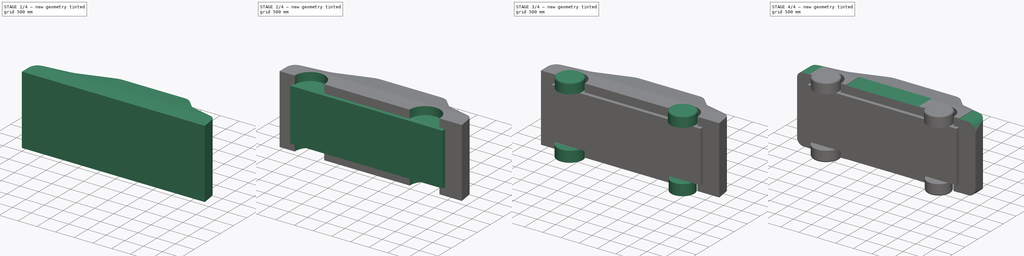
[diagram: build sequence overview — one tinted view per stage of 4, left to right]
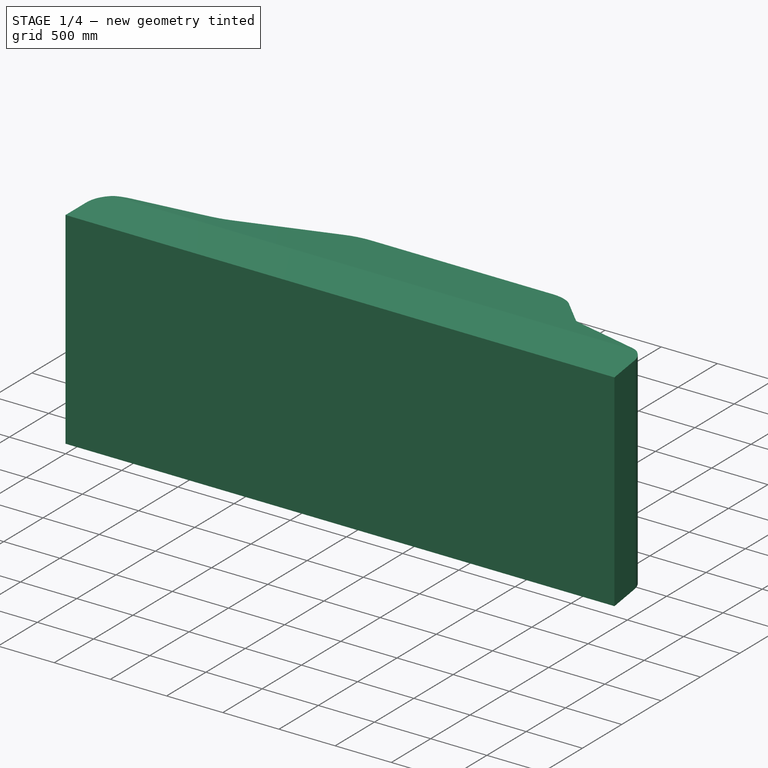
[diagram: stage 1 of 4 — iso view after this stage's code; geometry added in this stage tinted green]
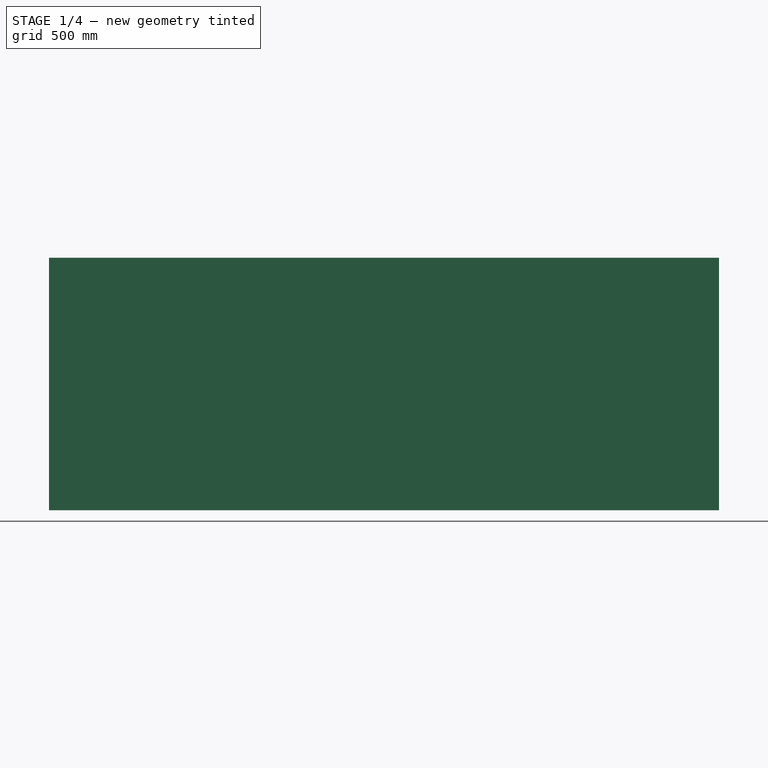
[diagram: stage 1 of 4 — front view after this stage's code; geometry added in this stage tinted green]
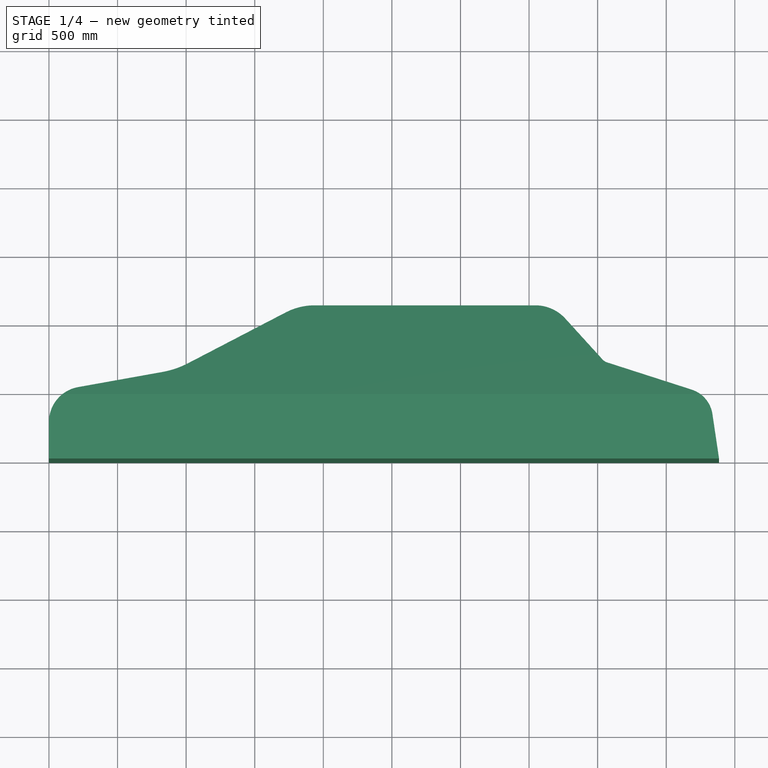
[diagram: stage 1 of 4 — top view after this stage's code; geometry added in this stage tinted green]
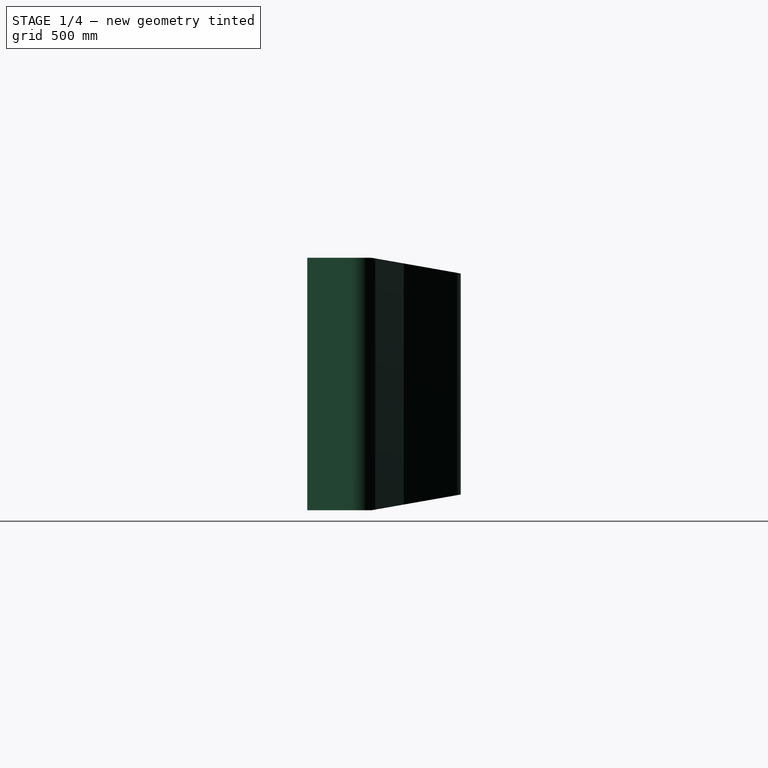
[diagram: stage 1 of 4 — right view after this stage's code; geometry added in this stage tinted green]
FCSTD DOCUMENT  (FreeCAD 1.0R39319 (Git))
Label: sedan-car
License: All rights reserved
LicenseURL: https://en.wikipedia.org/wiki/All_rights_reserved
objects: Sketcher::SketchObject×9, PartDesign::Pad×4, PartDesign::Pocket×3, PartDesign::Fillet×2, PartDesign::Body×1
note: 46 computed .brp shape members not serialized (recipe doc carries the construction recipe); baked Part::Feature solids carry a one-line shape summary decoded from their .brp

FEATURE [Sketcher::SketchObject] Sketch
  ArcFitTolerance = 1e-06
  AttachmentSupport = -> [XY_Plane]
  FullyConstrained = false
  MakeInternals = false
  MapMode = 5
  sketch-geometry (20):
    g0: LineSegment StartX=0 StartY=0 StartZ=0 EndX=4885 EndY=0 EndZ=0
    g1: LineSegment StartX=4885 StartY=0 StartZ=0 EndX=4836.85 EndY=324.008 EndZ=0
    g2: LineSegment StartX=4685.29 StartY=502.834 StartZ=0 EndX=4070.12 EndY=701.372 EndZ=0
    g3: LineSegment StartX=4034.64 StartY=724.268 StartZ=0 EndX=3763.79 EndY=1022.77 EndZ=0
    g4: LineSegment StartX=3546.4 StartY=1119.06 StartZ=0 EndX=1936.47 EndY=1119.06 EndZ=0
    g5: LineSegment StartX=1726.79 StartY=1067.63 StartZ=0 EndX=1014.79 EndY=695.958 EndZ=0
    g6: LineSegment StartX=826.713 StartY=631.63 StartZ=0 EndX=212.574 EndY=521.134 EndZ=0
    g7: LineSegment StartX=0 StartY=0 StartZ=0 EndX=0 EndY=266.901 EndZ=0
    g8: ArcOfCircle CenterX=3546.4 CenterY=825.521 CenterZ=0 NormalX=0 NormalY=0 NormalZ=1 AngleXU=0 Radius=293.541 StartAngle=0.73686 EndAngle=1.5708
    g9: GeomPoint [constr] X=3676.42 Y=1119.06 Z=0
    g10: ArcOfCircle CenterX=4617.03 CenterY=291.342 CenterZ=0 NormalX=0 NormalY=0 NormalZ=1 AngleXU=0 Radius=222.233 StartAngle=0.147524 EndAngle=1.25861
    g11: GeomPoint [constr] X=4816.57 Y=460.463 Z=0
    g12: ArcOfCircle CenterX=1936.47 CenterY=665.946 CenterZ=0 NormalX=0 NormalY=0 NormalZ=1 AngleXU=0 Radius=453.117 StartAngle=1.5708 EndAngle=2.0519
    g13: GeomPoint [constr] X=1825.32 Y=1119.06 Z=0
    g14: ArcOfCircle CenterX=710.134 CenterY=1279.58 CenterZ=0 NormalX=0 NormalY=0 NormalZ=1 AngleXU=0 Radius=658.353 StartAngle=4.8904 EndAngle=5.19349
    g15: GeomPoint [constr] X=925.663 Y=649.433 Z=0
    g16: ArcOfCircle CenterX=258.315 CenterY=266.901 CenterZ=0 NormalX=0 NormalY=0 NormalZ=1 AngleXU=0 Radius=258.315 StartAngle=1.74881 EndAngle=3.14159
    g17: GeomPoint [constr] X=0 Y=482.888 Z=0
    g18: ArcOfCircle CenterX=4095.26 CenterY=779.274 CenterZ=0 NormalX=0 NormalY=0 NormalZ=1 AngleXU=0 Radius=81.8594 StartAngle=3.87845 EndAngle=4.40021
    g19: GeomPoint [constr] X=4049.32 Y=708.084 Z=0
  constraints (31):
    c: Distance(g0) = 4885
    c: Coincident(g0,g-1)
    c: PointOnObject(g0,g-1)
    c: Coincident(g1,g0)
    c: Horizontal(g4)
    c: PointOnObject(g17,g-2)
    c: Coincident(g7,g0)
    c: PointOnObject(g9,g4)
    c: PointOnObject(g9,g3)
    c: Tangent(g4,g8) = -1.5708
    c: Tangent(g3,g8) = -1.5708
    c: PointOnObject(g11,g2)
    c: PointOnObject(g11,g1)
    c: Tangent(g2,g10) = -1.5708
    c: Tangent(g1,g10) = -1.5708
    c: PointOnObject(g13,g4)
    c: PointOnObject(g13,g5)
    c: Tangent(g4,g12) = -1.5708
    c: Tangent(g5,g12) = -1.5708
    c: PointOnObject(g15,g5)
    c: PointOnObject(g15,g6)
    c: Tangent(g5,g14) = 1.5708
    c: Tangent(g6,g14) = 1.5708
    c: PointOnObject(g17,g6)
    c: PointOnObject(g17,g7)
    c: Tangent(g6,g16) = -1.5708
    c: Tangent(g7,g16) = 1.5708
    c: PointOnObject(g19,g3)
    c: PointOnObject(g19,g2)
    c: Tangent(g3,g18) = 1.5708
    c: Tangent(g2,g18) = 1.5708
FEATURE [PartDesign::Pad] Pad
  Direction = (0,0,1)
  Length = 920
  Length2 = 920
  Profile = -> Sketch
  ReferenceAxis = -> Sketch [N_Axis]
  Refine = true
  Suppressed = false
  Type = 4
FEATURE [Sketcher::SketchObject] Sketch001
  ArcFitTolerance = 1e-06
  AttachmentSupport = -> [Pad]
  FullyConstrained = false
  MakeInternals = false
  MapMode = 5
  Placement = pos=(0,0,0) rot=(0.57735,-0.57735,-0.57735;2.0944rad)
  sketch-geometry (8):
    g0: LineSegment StartX=-300 StartY=950 StartZ=0 EndX=-1227.28 EndY=786.495 EndZ=0
    g1: LineSegment StartX=-300 StartY=-950 StartZ=0 EndX=-1227.28 EndY=-786.495 EndZ=0
    g2: LineSegment StartX=-1227.28 StartY=-786.495 StartZ=0 EndX=-1227.28 EndY=786.495 EndZ=0
    g3: LineSegment StartX=-300 StartY=950 StartZ=0 EndX=-300 EndY=1175.19 EndZ=0
    g4: LineSegment StartX=-300 StartY=1175.19 StartZ=0 EndX=-1537.58 EndY=1175.19 EndZ=0
    g5: LineSegment StartX=-1537.58 StartY=1175.19 StartZ=0 EndX=-1537.58 EndY=-1275.15 EndZ=0
    g6: LineSegment StartX=-1537.58 StartY=-1275.15 StartZ=0 EndX=-300 EndY=-1275.15 EndZ=0
    g7: LineSegment StartX=-300 StartY=-950 StartZ=0 EndX=-300 EndY=-1275.15 EndZ=0
  constraints (20):
    c: Coincident(g2,g1)
    c: Coincident(g2,g0)
    c: Vertical(g2)
    c: Coincident(g3,g0)
    c: Vertical(g3)
    c: Coincident(g4,g3)
    c: Horizontal(g4)
    c: Coincident(g5,g4)
    c: Vertical(g5)
    c: Coincident(g6,g5)
    c: Horizontal(g6)
    c: Coincident(g7,g1)
    c: Coincident(g7,g6)
    c: Vertical(g7)
    c: Angle(g4,g0) = 0.174533
    c: Angle(g1,g6) = 0.174533
    c: Distance(g-2,g3) = 300
    c: Distance(g-2,g7) = 300
    c: DistanceY(g-1,g0) = 950
    c: DistanceY(g1,g-1) = 950
FEATURE [PartDesign::Pocket] Pocket
  BaseFeature = -> Pad
  Direction = (1,0,0)
  Length = 5
  Length2 = 5
  Profile = -> Sketch001
  ReferenceAxis = -> Sketch001 [N_Axis]
  Refine = true
  Suppressed = false
  Type = 1
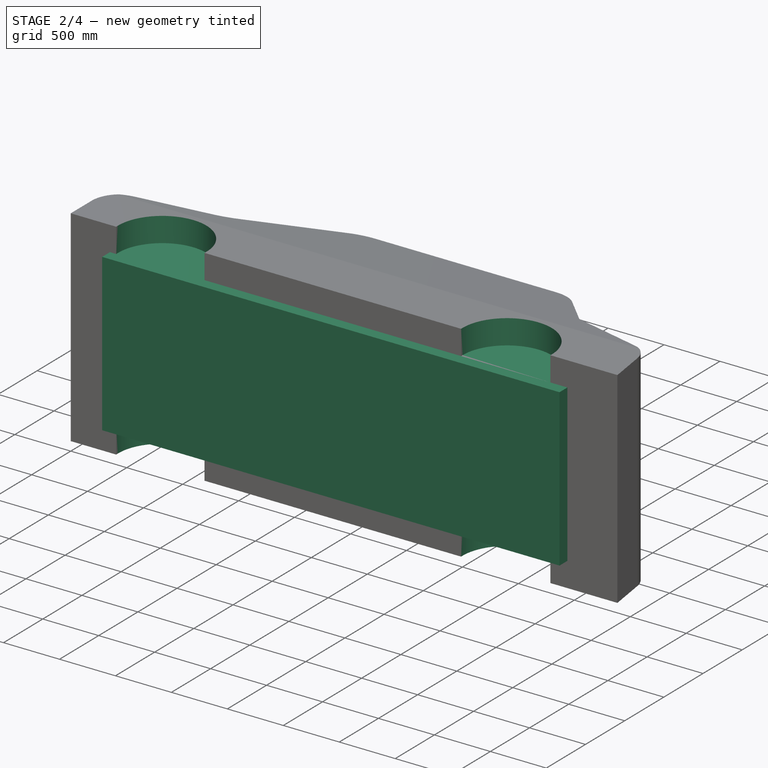
[diagram: stage 2 of 4 — iso view after this stage's code; geometry added in this stage tinted green]
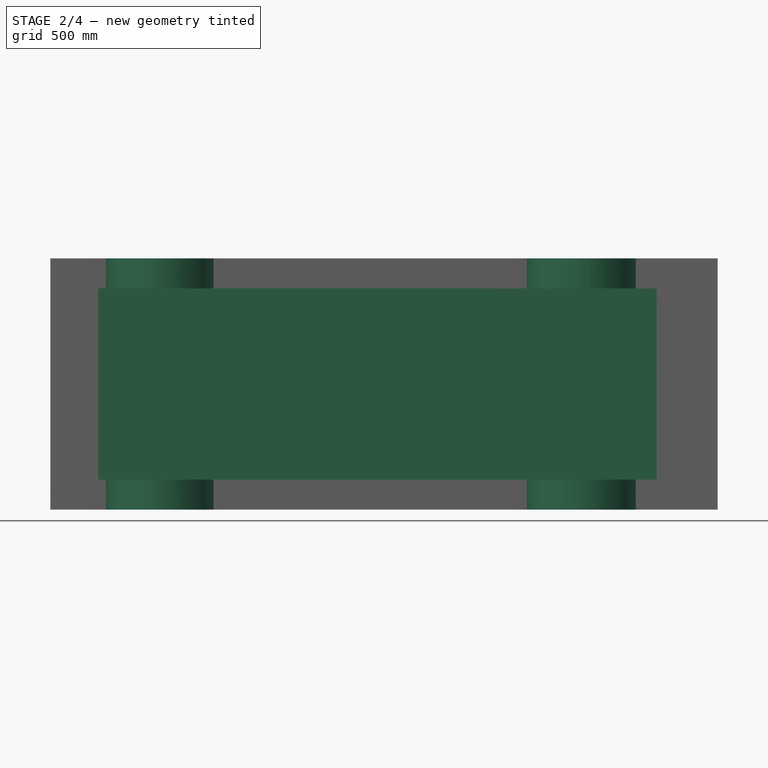
[diagram: stage 2 of 4 — front view after this stage's code; geometry added in this stage tinted green]
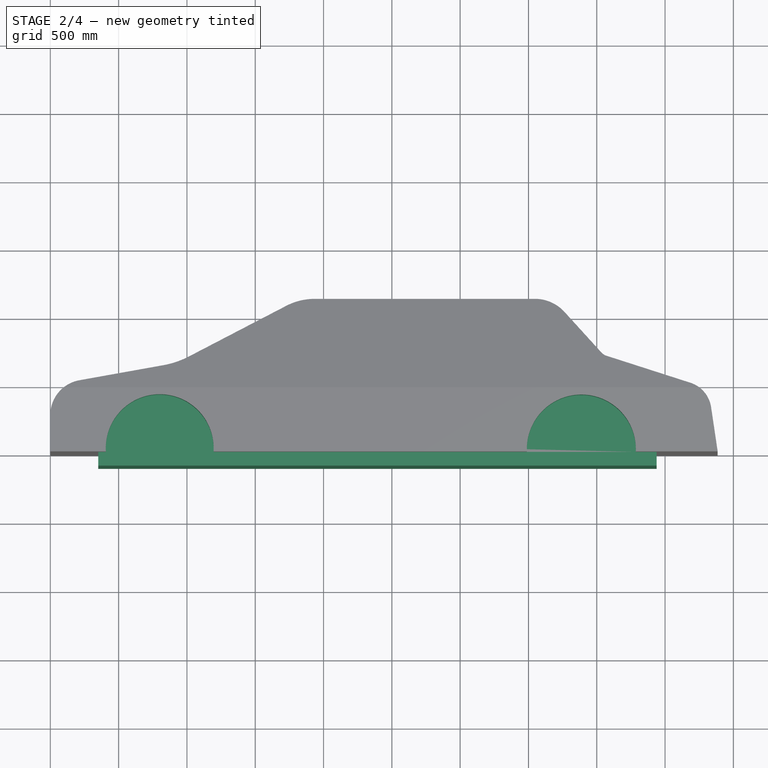
[diagram: stage 2 of 4 — top view after this stage's code; geometry added in this stage tinted green]
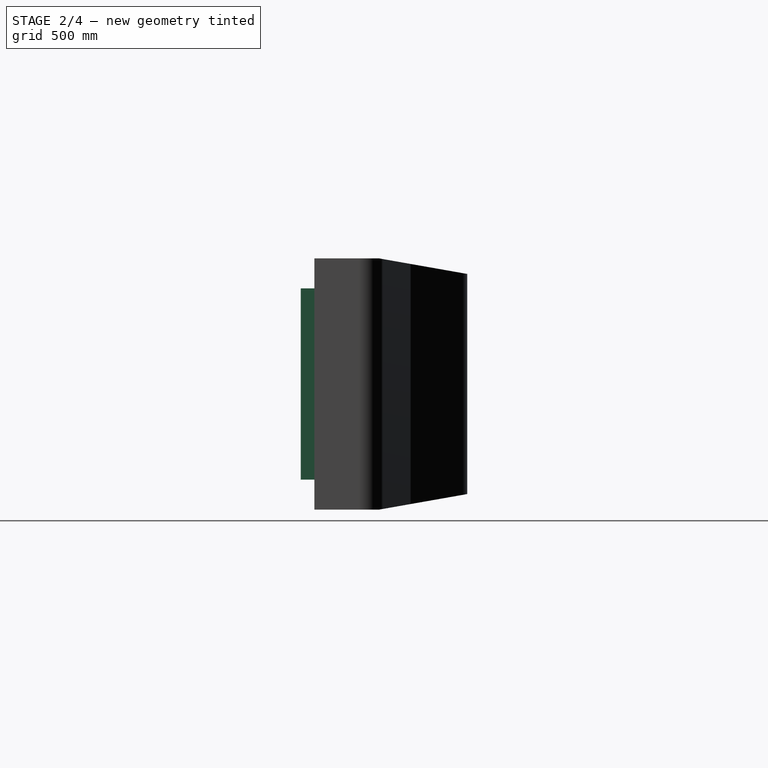
[diagram: stage 2 of 4 — right view after this stage's code; geometry added in this stage tinted green]
FEATURE [Sketcher::SketchObject] Sketch002
  ArcFitTolerance = 1e-06
  AttachmentSupport = -> [Pocket]
  FullyConstrained = false
  MakeInternals = false
  MapMode = 5
  Placement = pos=(0,0,-920) rot=(1,0,0;3.14159rad)
  sketch-geometry (2):
    g0: Circle CenterX=800.758 CenterY=-23.8619 CenterZ=0 NormalX=0 NormalY=0 NormalZ=1 AngleXU=0 Radius=394.97
    g1: Circle CenterX=3886.92 CenterY=-17.3234 CenterZ=0 NormalX=0 NormalY=0 NormalZ=1 AngleXU=0 Radius=399.062
FEATURE [PartDesign::Pocket] Pocket001
  BaseFeature = -> Pocket
  Direction = (0,0,1)
  Length = 5
  Length2 = 5
  Profile = -> Sketch002
  ReferenceAxis = -> Sketch002 [N_Axis]
  Refine = true
  Suppressed = false
  Type = 1
FEATURE [Sketcher::SketchObject] Sketch003
  ArcFitTolerance = 1e-06
  AttachmentSupport = -> [Pocket001]
  FullyConstrained = false
  MakeInternals = false
  MapMode = 5
  Placement = pos=(0,0,0) rot=(1,0,0;1.5708rad)
  sketch-geometry (4):
    g0: LineSegment StartX=350.605 StartY=700 StartZ=0 EndX=350.605 EndY=-700 EndZ=0
    g1: LineSegment StartX=350.605 StartY=-700 StartZ=0 EndX=4437.71 EndY=-700 EndZ=0
    g2: LineSegment StartX=4437.71 StartY=-700 StartZ=0 EndX=4437.71 EndY=700 EndZ=0
    g3: LineSegment StartX=4437.71 StartY=700 StartZ=0 EndX=350.605 EndY=700 EndZ=0
  constraints (10):
    c: Coincident(g0,g1)
    c: Coincident(g1,g2)
    c: Coincident(g2,g3)
    c: Coincident(g3,g0)
    c: Vertical(g0)
    c: Vertical(g2)
    c: Horizontal(g1)
    c: Horizontal(g3)
    c: Distance(g-1,g3) = 700
    c: Distance(g-1,g1) = 700
FEATURE [PartDesign::Pad] Pad001
  BaseFeature = -> Pocket001
  Direction = (0,-1,2e-16)
  Length = 100
  Length2 = 500
  Profile = -> Sketch003
  ReferenceAxis = -> Sketch003 [N_Axis]
  Refine = true
  Suppressed = false
  Type = 4
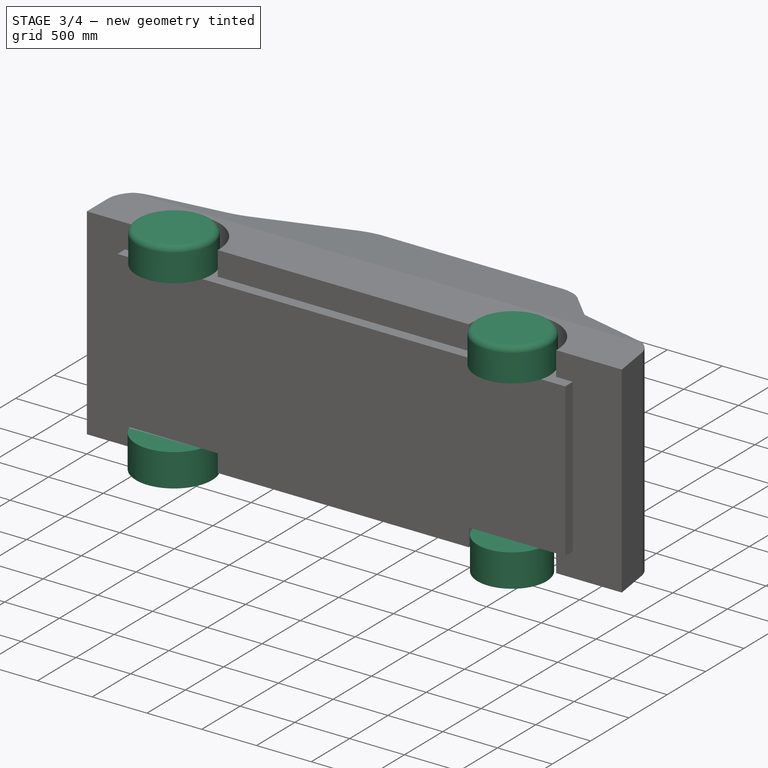
[diagram: stage 3 of 4 — iso view after this stage's code; geometry added in this stage tinted green]
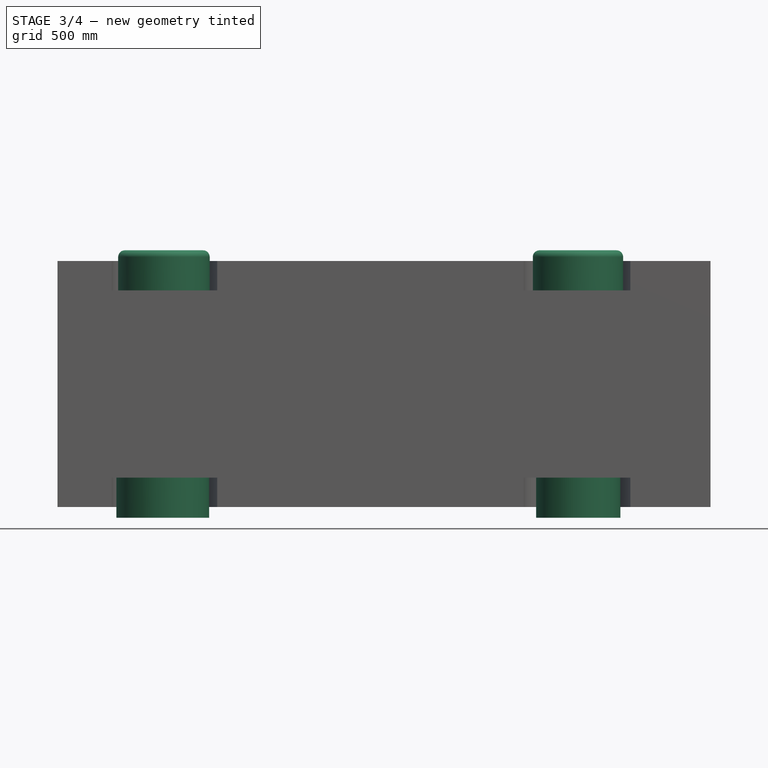
[diagram: stage 3 of 4 — front view after this stage's code; geometry added in this stage tinted green]
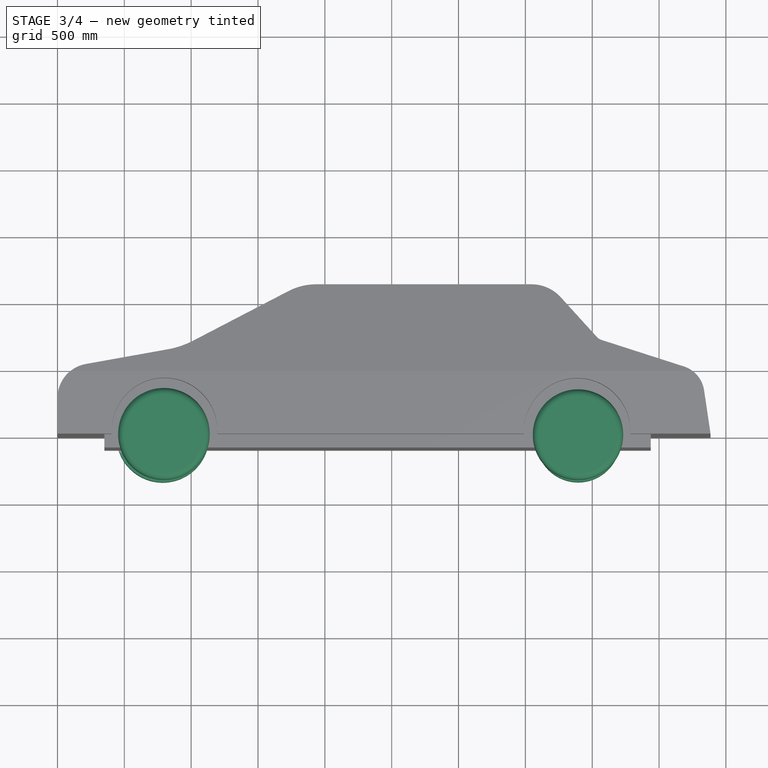
[diagram: stage 3 of 4 — top view after this stage's code; geometry added in this stage tinted green]
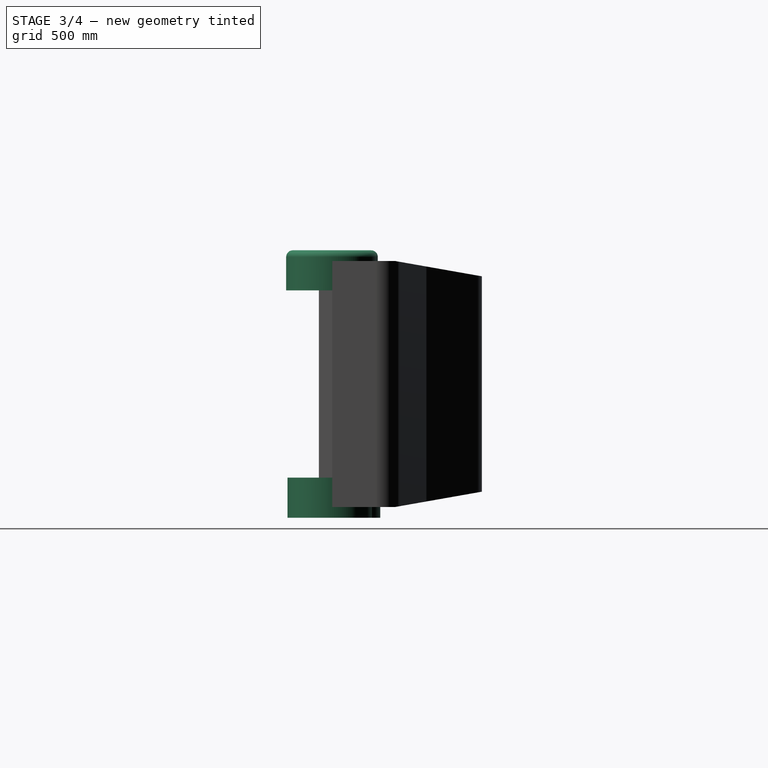
[diagram: stage 3 of 4 — right view after this stage's code; geometry added in this stage tinted green]
FEATURE [Sketcher::SketchObject] Sketch004
  ArcFitTolerance = 1e-06
  AttachmentSupport = -> [Pad001]
  FullyConstrained = true
  MakeInternals = false
  MapMode = 5
  Placement = pos=(0,1.554e-13,700) rot=(0,0,1;0rad)
FEATURE [Sketcher::SketchObject] Sketch005
  ArcFitTolerance = 1e-06
  AttachmentSupport = -> [Pad001]
  FullyConstrained = false
  MakeInternals = false
  MapMode = 5
  Placement = pos=(0,1.554e-13,700) rot=(0,0,1;0rad)
  sketch-geometry (2):
    g0: Circle CenterX=796.418 CenterY=-1.33923 CenterZ=0 NormalX=0 NormalY=0 NormalZ=1 AngleXU=0 Radius=342.245
    g1: Circle CenterX=3893.46 CenterY=-6.92957 CenterZ=0 NormalX=0 NormalY=0 NormalZ=1 AngleXU=0 Radius=337.741
FEATURE [PartDesign::Pad] Pad002
  BaseFeature = -> Pad001
  Direction = (0,0,1)
  Length = 300
  Length2 = 10
  Profile = -> Sketch005
  ReferenceAxis = -> Sketch005 [N_Axis]
  Refine = true
  Suppressed = false
  Type = 0
FEATURE [PartDesign::Fillet] Fillet
  Base = -> Pad002 [Edge99,Edge102]
  BaseFeature = -> Pad002
  Radius = 50
  Refine = true
  SupportTransform = false
  Suppressed = false
  UseAllEdges = false
FEATURE [Sketcher::SketchObject] Sketch006
  ArcFitTolerance = 1e-06
  AttachmentSupport = -> [Fillet]
  FullyConstrained = false
  MakeInternals = false
  MapMode = 5
  Placement = pos=(0,-1.554e-13,-700) rot=(1,0,0;3.14159rad)
  sketch-geometry (2):
    g0: Circle CenterX=787.778 CenterY=-12.3265 CenterZ=0 NormalX=0 NormalY=0 NormalZ=1 AngleXU=0 Radius=347.084
    g1: Circle CenterX=3895.44 CenterY=18.1409 CenterZ=0 NormalX=0 NormalY=0 NormalZ=1 AngleXU=0 Radius=314.747
FEATURE [PartDesign::Pad] Pad003
  BaseFeature = -> Fillet
  Direction = (0,0,-1)
  Length = 300
  Length2 = 10
  Profile = -> Sketch006
  ReferenceAxis = -> Sketch006 [N_Axis]
  Refine = true
  Suppressed = false
  Type = 0
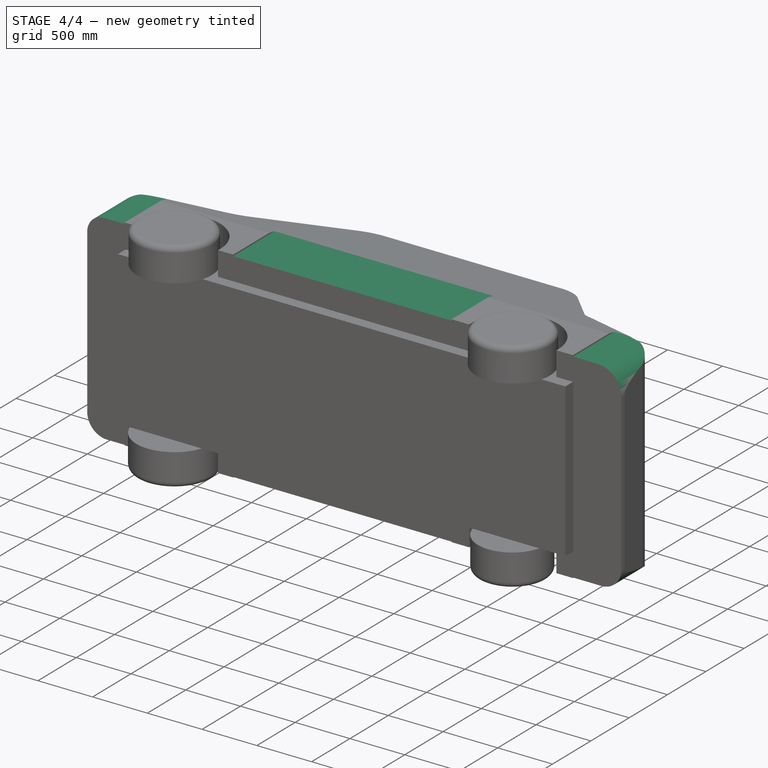
[diagram: stage 4 of 4 — iso view after this stage's code; geometry added in this stage tinted green]
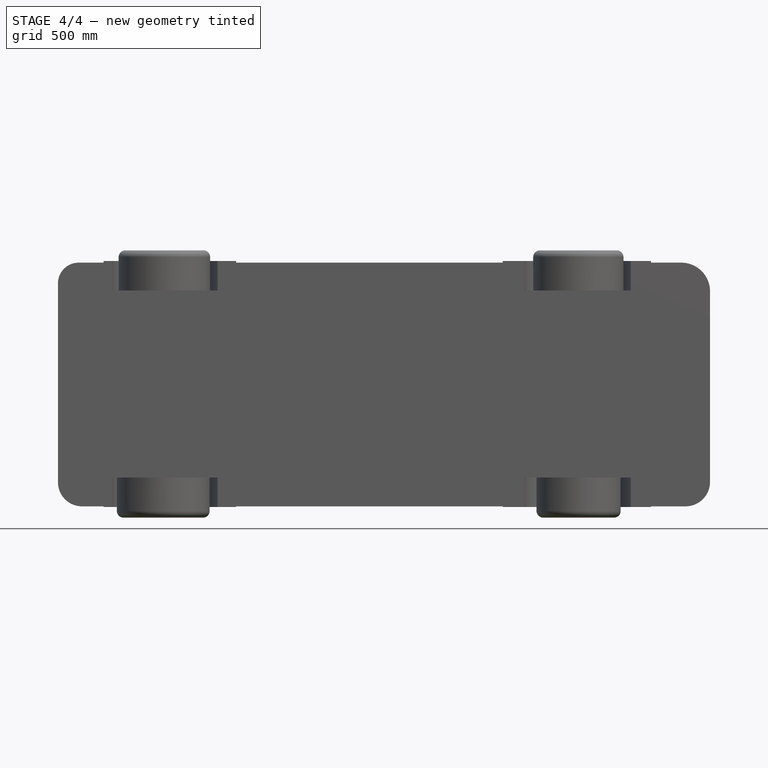
[diagram: stage 4 of 4 — front view after this stage's code; geometry added in this stage tinted green]
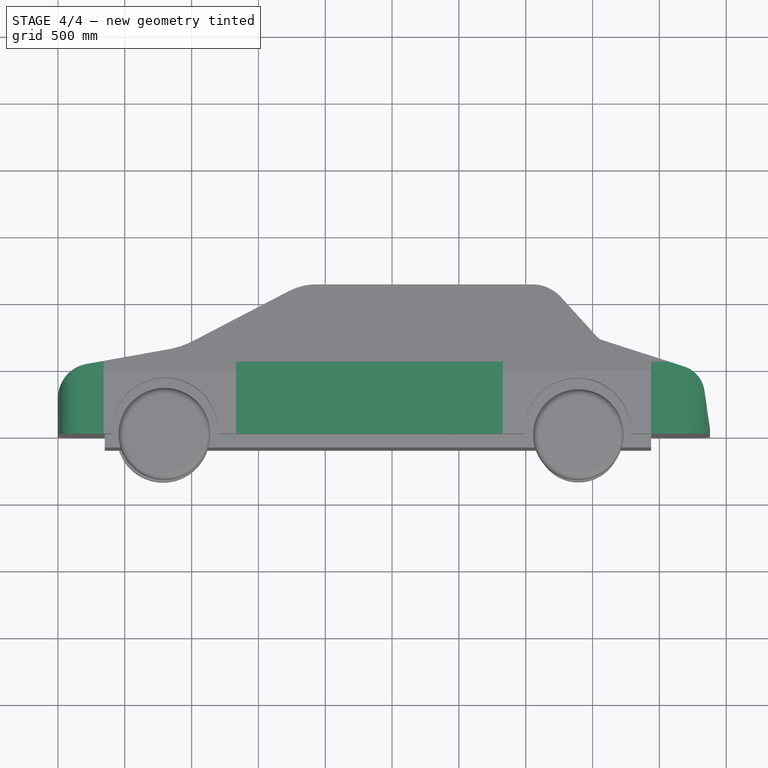
[diagram: stage 4 of 4 — top view after this stage's code; geometry added in this stage tinted green]
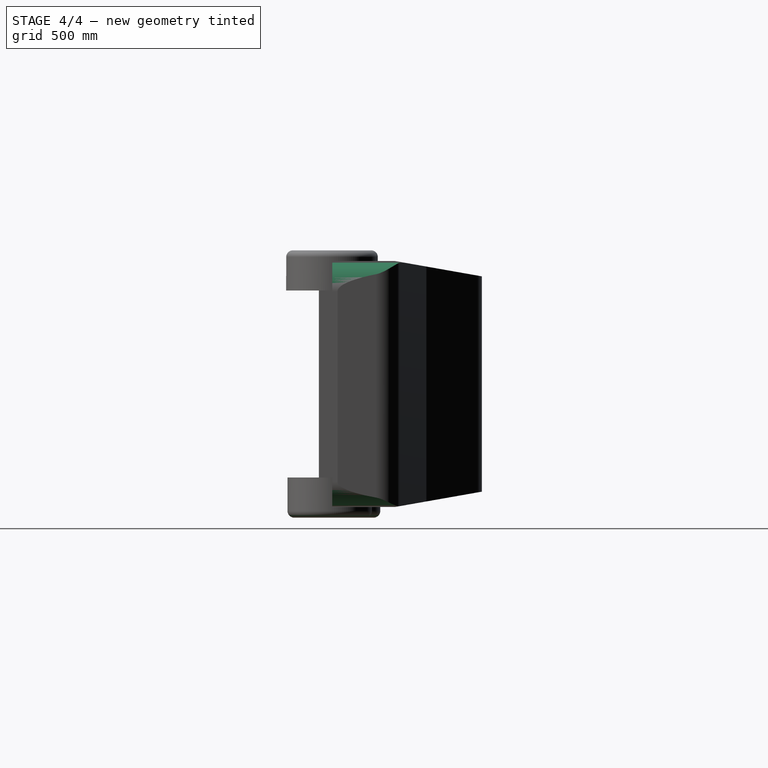
[diagram: stage 4 of 4 — right view after this stage's code; geometry added in this stage tinted green]
FEATURE [PartDesign::Fillet] Fillet001
  Base = -> Pad003 [Edge110,Edge112]
  BaseFeature = -> Pad003
  Radius = 50
  Refine = true
  SupportTransform = false
  Suppressed = false
  UseAllEdges = false
FEATURE [Sketcher::SketchObject] Sketch007
  ArcFitTolerance = 1e-06
  AttachmentSupport = -> [Fillet001]
  FullyConstrained = true
  MakeInternals = false
  MapMode = 5
  Placement = pos=(0,0,0) rot=(1,0,0;1.5708rad)
FEATURE [Sketcher::SketchObject] Sketch008
  ArcFitTolerance = 1e-06
  AttachmentSupport = -> [Fillet001]
  FullyConstrained = false
  MakeInternals = false
  MapMode = 5
  Placement = pos=(0,0,0) rot=(1,0,0;1.5708rad)
  sketch-geometry (32):
    g0: LineSegment StartX=-379.481 StartY=1355.62 StartZ=0 EndX=-379.481 EndY=-1460.88 EndZ=0
    g1: LineSegment StartX=-379.481 StartY=-1460.88 StartZ=0 EndX=5245.38 EndY=-1460.88 EndZ=0
    g2: LineSegment StartX=5245.38 StartY=-1460.88 StartZ=0 EndX=5245.38 EndY=1355.62 EndZ=0
    g3: LineSegment StartX=5245.38 StartY=1355.62 StartZ=0 EndX=-379.481 EndY=1355.62 EndZ=0
    g4: LineSegment StartX=0 StartY=753.249 StartZ=0 EndX=0 EndY=-734.819 EndZ=0
    g5: LineSegment StartX=180.667 StartY=-915.486 StartZ=0 EndX=341.487 EndY=-915.486 EndZ=0
    g6: LineSegment StartX=4879.07 StartY=-731.835 StartZ=0 EndX=4879.07 EndY=692.39 EndZ=0
    g7: LineSegment StartX=4663.55 StartY=907.913 StartZ=0 EndX=4436.81 EndY=907.913 EndZ=0
    g8: ArcOfCircle CenterX=154.664 CenterY=753.249 CenterZ=0 NormalX=0 NormalY=0 NormalZ=1 AngleXU=0 Radius=154.664 StartAngle=1.5708 EndAngle=3.14159
    g9: GeomPoint [constr] X=0 Y=907.913 Z=0
    g10: ArcOfCircle CenterX=180.667 CenterY=-734.819 CenterZ=0 NormalX=0 NormalY=0 NormalZ=1 AngleXU=0 Radius=180.667 StartAngle=3.14159 EndAngle=4.71239
    g11: GeomPoint [constr] X=0 Y=-915.486 Z=0
    g12: ArcOfCircle CenterX=4695.42 CenterY=-731.835 CenterZ=0 NormalX=0 NormalY=0 NormalZ=1 AngleXU=0 Radius=183.651 StartAngle=4.71239 EndAngle=6.28319
    g13: GeomPoint [constr] X=4879.07 Y=-915.486 Z=0
    g14: ArcOfCircle CenterX=4663.55 CenterY=692.39 CenterZ=0 NormalX=0 NormalY=0 NormalZ=1 AngleXU=0 Radius=215.523 StartAngle=0 EndAngle=1.5708
    g15: GeomPoint [constr] X=4879.07 Y=907.913 Z=0
    g16: LineSegment StartX=341.487 StartY=-1146.79 StartZ=0 EndX=1333.23 EndY=-1146.79 EndZ=0
    g17: LineSegment StartX=1333.23 StartY=-1146.79 StartZ=0 EndX=1333.23 EndY=-915.486 EndZ=0
    g18: LineSegment StartX=1333.23 StartY=1116.73 StartZ=0 EndX=341.487 EndY=1116.73 EndZ=0
    g19: LineSegment StartX=341.487 StartY=1116.73 StartZ=0 EndX=341.487 EndY=907.913 EndZ=0
    g20: LineSegment StartX=3328.39 StartY=1105.06 StartZ=0 EndX=3328.39 EndY=907.913 EndZ=0
    g21: LineSegment StartX=3328.39 StartY=-1065.11 StartZ=0 EndX=4436.81 EndY=-1065.11 EndZ=0
    g22: LineSegment StartX=4436.81 StartY=-1065.11 StartZ=0 EndX=4436.81 EndY=-915.486 EndZ=0
    g23: LineSegment StartX=4436.81 StartY=1105.06 StartZ=0 EndX=3328.39 EndY=1105.06 EndZ=0
    g24: LineSegment StartX=341.487 StartY=-915.486 StartZ=0 EndX=341.487 EndY=-1146.79 EndZ=0
    g25: LineSegment StartX=341.487 StartY=907.913 StartZ=0 EndX=154.664 EndY=907.913 EndZ=0
    g26: LineSegment StartX=1333.23 StartY=-915.486 StartZ=0 EndX=3328.39 EndY=-915.486 EndZ=0
    g27: LineSegment StartX=1333.23 StartY=907.913 StartZ=0 EndX=1333.23 EndY=1116.73 EndZ=0
    g28: LineSegment StartX=3328.39 StartY=907.913 StartZ=0 EndX=1333.23 EndY=907.913 EndZ=0
    g29: LineSegment StartX=4436.81 StartY=-915.486 StartZ=0 EndX=4695.42 EndY=-915.486 EndZ=0
    g30: LineSegment StartX=3328.39 StartY=-915.486 StartZ=0 EndX=3328.39 EndY=-1065.11 EndZ=0
    g31: LineSegment StartX=4436.81 StartY=907.913 StartZ=0 EndX=4436.81 EndY=1105.06 EndZ=0
  constraints (57):
    c: Coincident(g0,g1)
    c: Coincident(g1,g2)
    c: Coincident(g2,g3)
    c: Coincident(g3,g0)
    c: Vertical(g0)
    c: Vertical(g2)
    c: Horizontal(g1)
    c: Horizontal(g3)
    c: Vertical(g4)
    c: Vertical(g6)
    c: Horizontal(g5)
    c: Horizontal(g7)
    c: PointOnObject(g9,g-2)
    c: PointOnObject(g9,g4)
    c: PointOnObject(g9,g25)
    c: Tangent(g4,g8) = -1.5708
    c: Coincident(g25,g8) = -1.5708
    c: PointOnObject(g11,g5)
    c: PointOnObject(g11,g4)
    c: Tangent(g5,g10) = -1.5708
    c: Tangent(g4,g10) = -1.5708
    c: PointOnObject(g13,g29)
    c: PointOnObject(g13,g6)
    c: Coincident(g29,g12) = -1.5708
    c: Tangent(g6,g12) = -1.5708
    c: PointOnObject(g15,g7)
    c: PointOnObject(g15,g6)
    c: Tangent(g7,g14) = -1.5708
    c: Tangent(g6,g14) = -1.5708
    c: Coincident(g16,g17)
    c: Coincident(g27,g18)
    c: Coincident(g18,g19)
    c: Coincident(g24,g16)
    c: Horizontal(g16)
    c: Horizontal(g18)
    c: Vertical(g17)
    c: Vertical(g19)
    c: Coincident(g30,g21)
    c: Coincident(g21,g22)
    c: Coincident(g31,g23)
    c: Coincident(g23,g20)
    c: Vertical(g20)
    c: Vertical(g22)
    c: Horizontal(g21)
    c: Horizontal(g23)
    c: PointOnObject(g19,g25)
    c: PointOnObject(g28,g27)
    c: PointOnObject(g25,g19)
    c: Coincident(g5,g24)
    c: Coincident(g17,g26)
    c: PointOnObject(g27,g28)
    c: PointOnObject(g7,g31)
    c: PointOnObject(g26,g30)
    c: Coincident(g20,g28)
    c: PointOnObject(g30,g26)
    c: Coincident(g22,g29)
    c: PointOnObject(g31,g7)
FEATURE [PartDesign::Pocket] Pocket002
  BaseFeature = -> Fillet001
  Direction = (0,1,-2e-16)
  Length = 5
  Length2 = 5
  Profile = -> Sketch008
  ReferenceAxis = -> Sketch008 [N_Axis]
  Refine = true
  Suppressed = false
  Type = 1
FEATURE [PartDesign::Body] Body
  AllowCompound = false
  Group = -> [Sketch,Pad,Sketch001,Pocket,Sketch002,Pocket001,Sketch003,Pad001,Sketch004,Sketch005,Pad002,Fillet,Sketch006,Pad003,Fillet001,Sketch007,Sketch008,Pocket002]
  Origin = -> Origin
  Tip = -> Pocket002
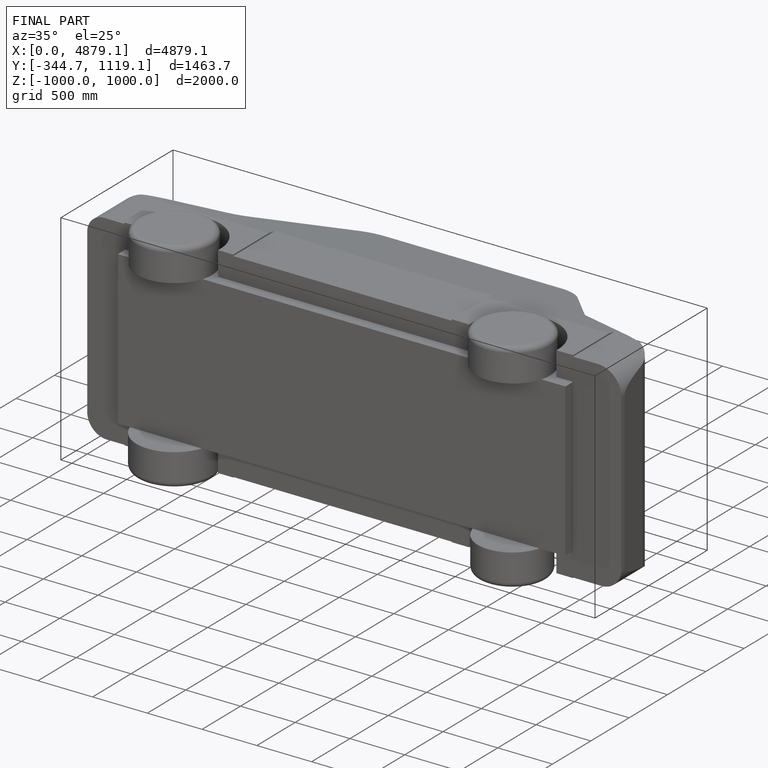
[diagram: finished part — iso view with bounding-box wireframe]
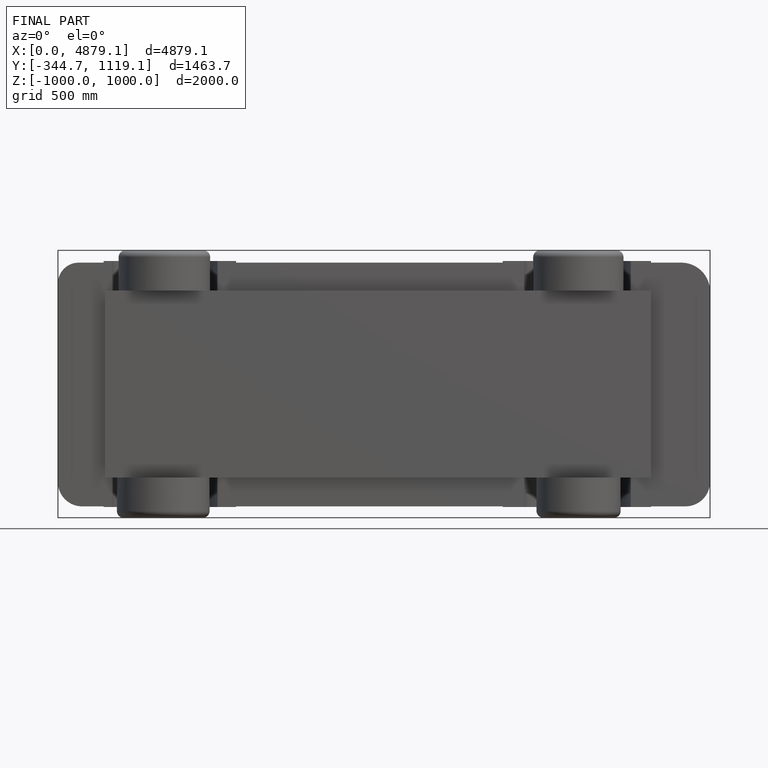
[diagram: finished part — front view with bounding-box wireframe]
